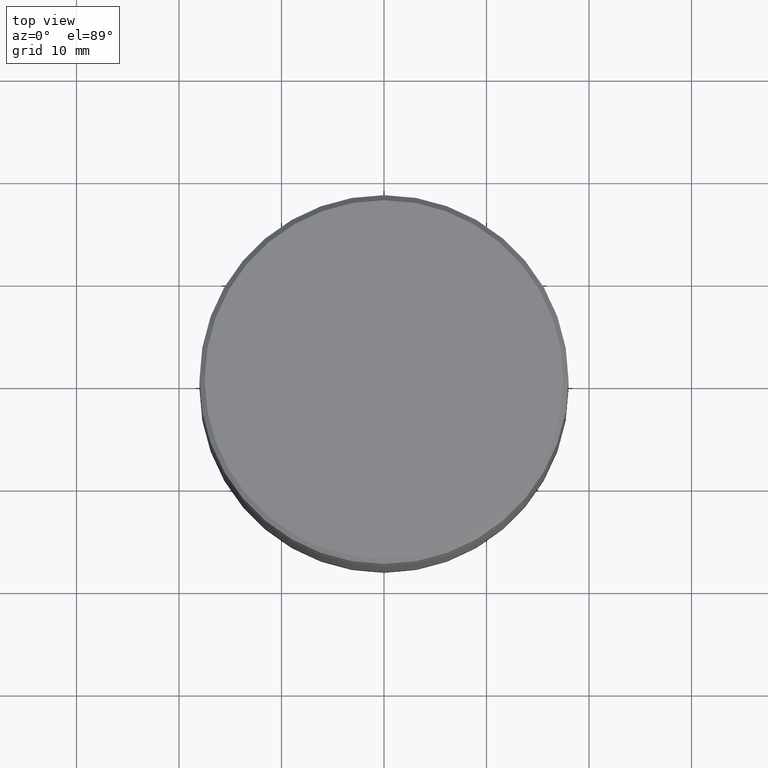
[diagram: clean part render]
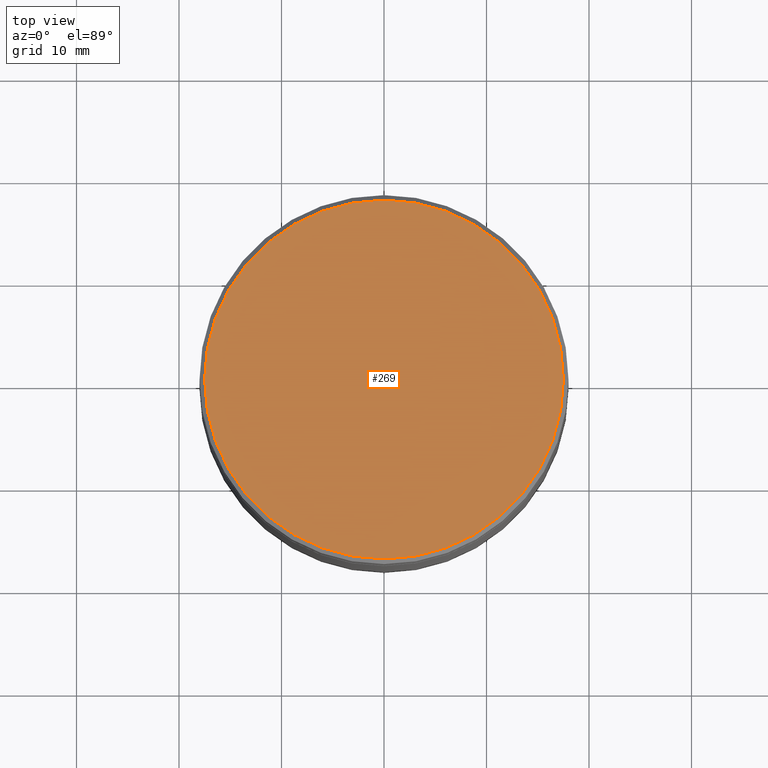
[diagram: same view with one face highlighted and labeled with its STEP entity id]
A machine part, top view. The second image highlights one B-rep face of the part: STEP entity #269.
In plain terms, the highlighted planar face has unit normal (0, -0, 1).
Its self-contained STEP definition (entity closure, byte-faithful):
#10 = CARTESIAN_POINT ( 'NONE',  ( 0.000000000000000000, 0.000000000000000000, 0.000000000000000000 ) ) ;
#23 = CARTESIAN_POINT ( 'NONE',  ( 17.50000000000000000, 2.173748068486551641E-15, 0.000000000000000000 ) ) ;
#65 = EDGE_CURVE ( 'NONE', #326, #294, #84, .T. ) ;
#71 = DIRECTION ( 'NONE',  ( 0.000000000000000000, -0.000000000000000000, 1.000000000000000000 ) ) ;
#84 = CIRCLE ( 'NONE', #399, 17.50000000000000000 ) ;
#166 = DIRECTION ( 'NONE',  ( 1.000000000000000000, 0.000000000000000000, 0.000000000000000000 ) ) ;
#170 = DIRECTION ( 'NONE',  ( 1.000000000000000000, 0.000000000000000000, 0.000000000000000000 ) ) ;
#190 = DIRECTION ( 'NONE',  ( 1.000000000000000000, 0.000000000000000000, 0.000000000000000000 ) ) ;
#205 = CARTESIAN_POINT ( 'NONE',  ( 0.000000000000000000, 0.000000000000000000, 0.000000000000000000 ) ) ;
#211 = FACE_OUTER_BOUND ( 'NONE', #405, .T. ) ;
#221 = AXIS2_PLACEMENT_3D ( 'NONE', #205, #71, #170 ) ;
#260 = AXIS2_PLACEMENT_3D ( 'NONE', #344, #478, #166 ) ;
#269 = ADVANCED_FACE ( 'NONE', ( #211 ), #417, .T. ) ;
#274 = EDGE_CURVE ( 'NONE', #294, #326, #303, .T. ) ;
#294 = VERTEX_POINT ( 'NONE', #332 ) ;
#303 = CIRCLE ( 'NONE', #260, 17.50000000000000000 ) ;
#326 = VERTEX_POINT ( 'NONE', #23 ) ;
#332 = CARTESIAN_POINT ( 'NONE',  ( -17.50000000000000000, 0.000000000000000000, 0.000000000000000000 ) ) ;
#344 = CARTESIAN_POINT ( 'NONE',  ( 0.000000000000000000, 0.000000000000000000, 0.000000000000000000 ) ) ;
#397 = DIRECTION ( 'NONE',  ( -0.000000000000000000, -0.000000000000000000, 1.000000000000000000 ) ) ;
#399 = AXIS2_PLACEMENT_3D ( 'NONE', #10, #397, #190 ) ;
#405 = EDGE_LOOP ( 'NONE', ( #416, #484 ) ) ;
#416 = ORIENTED_EDGE ( 'NONE', *, *, #274, .T. ) ;
#417 = PLANE ( 'NONE',  #221 ) ;
#478 = DIRECTION ( 'NONE',  ( -0.000000000000000000, -0.000000000000000000, 1.000000000000000000 ) ) ;
#484 = ORIENTED_EDGE ( 'NONE', *, *, #65, .T. ) ;